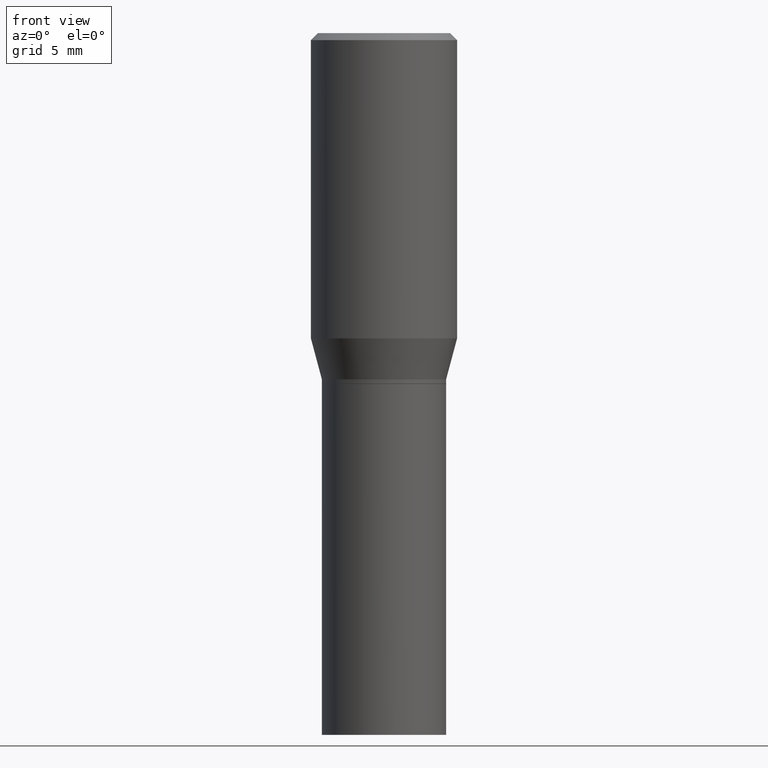
[diagram: clean part render]
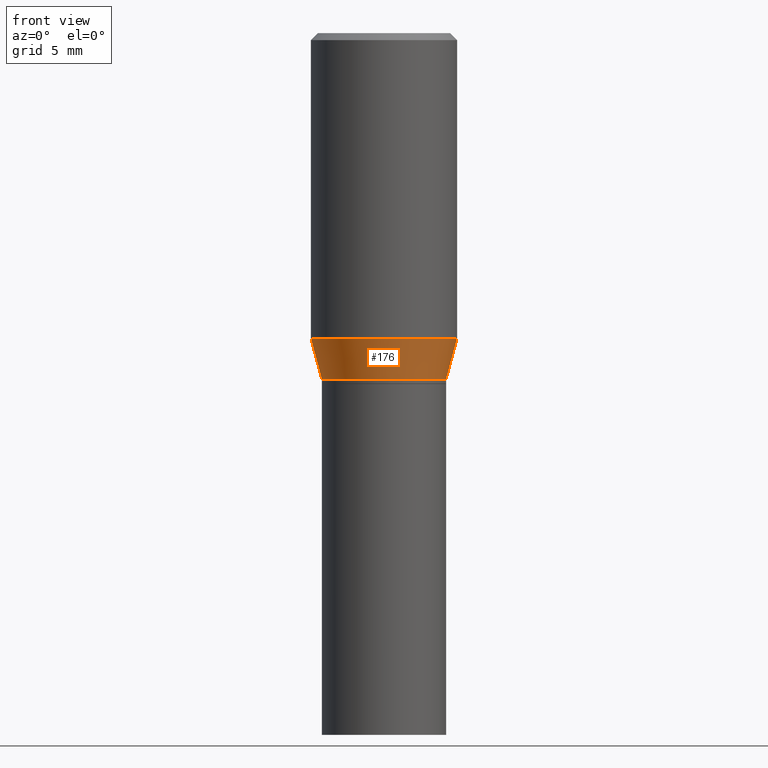
[diagram: same view with one face highlighted and labeled with its STEP entity id]
A machine part, front view. The second image highlights one B-rep face of the part: STEP entity #176.
In plain terms, the highlighted conical surface has half-angle 15 deg.
Its self-contained STEP definition (entity closure, byte-faithful):
#8 = CARTESIAN_POINT ( 'NONE',  ( 0.1328000000000000569, -3.511033634340664450E-15, -0.7400000000000002132 ) ) ;
#20 = ORIENTED_EDGE ( 'NONE', *, *, #390, .F. ) ;
#32 = CARTESIAN_POINT ( 'NONE',  ( 0.1562500000000000000, -3.369221563289251454E-15, -0.6524834085625104141 ) ) ;
#36 = CARTESIAN_POINT ( 'NONE',  ( -0.1328000000000000569, -1.404003028965065357E-15, -0.7400000000000002132 ) ) ;
#72 = DIRECTION ( 'NONE',  ( -2.445468806185136597E-29, 3.491481338843145583E-15, 1.000000000000000000 ) ) ;
#85 = CIRCLE ( 'NONE', #138, 0.1328000000000000569 ) ;
#86 = EDGE_CURVE ( 'NONE', #124, #198, #88, .T. ) ;
#88 = LINE ( 'NONE', #8, #377 ) ;
#113 = DIRECTION ( 'NONE',  ( -0.2588190451025214611, 5.211531920934550253E-15, 0.9659258262890679791 ) ) ;
#124 = VERTEX_POINT ( 'NONE', #465 ) ;
#129 = ORIENTED_EDGE ( 'NONE', *, *, #359, .F. ) ;
#135 = DIRECTION ( 'NONE',  ( 1.000000000000000000, -6.982962677686265133E-15, 0.000000000000000000 ) ) ;
#138 = AXIS2_PLACEMENT_3D ( 'NONE', #458, #72, #155 ) ;
#155 = DIRECTION ( 'NONE',  ( 1.000000000000000000, -6.982962677686265133E-15, 0.000000000000000000 ) ) ;
#159 = AXIS2_PLACEMENT_3D ( 'NONE', #400, #239, #135 ) ;
#161 = EDGE_CURVE ( 'NONE', #191, #124, #85, .T. ) ;
#167 = AXIS2_PLACEMENT_3D ( 'NONE', #423, #351, #286 ) ;
#176 = ADVANCED_FACE ( 'NONE', ( #225 ), #291, .T. ) ;
#183 = LINE ( 'NONE', #222, #352 ) ;
#191 = VERTEX_POINT ( 'NONE', #36 ) ;
#193 = DIRECTION ( 'NONE',  ( 0.2588190451025214611, 1.565188264969620982E-15, 0.9659258262890679791 ) ) ;
#198 = VERTEX_POINT ( 'NONE', #32 ) ;
#222 = CARTESIAN_POINT ( 'NONE',  ( -0.1328000000000000569, -1.640095437654514777E-15, -0.7400000000000002132 ) ) ;
#225 = FACE_OUTER_BOUND ( 'NONE', #405, .T. ) ;
#239 = DIRECTION ( 'NONE',  ( -2.445468806185136597E-29, 3.491481338843145583E-15, 1.000000000000000000 ) ) ;
#286 = DIRECTION ( 'NONE',  ( 1.000000000000000000, -6.982962677686265133E-15, 0.000000000000000000 ) ) ;
#291 = CONICAL_SURFACE ( 'NONE', #159, 0.1328000000000000569, 0.2617993877991501850 ) ;
#318 = ORIENTED_EDGE ( 'NONE', *, *, #86, .T. ) ;
#351 = DIRECTION ( 'NONE',  ( -2.445468806185136597E-29, 3.491481338843145583E-15, 1.000000000000000000 ) ) ;
#352 = VECTOR ( 'NONE', #113, 39.37007874015748143 ) ;
#359 = EDGE_CURVE ( 'NONE', #191, #415, #183, .T. ) ;
#377 = VECTOR ( 'NONE', #193, 39.37007874015748143 ) ;
#382 = ORIENTED_EDGE ( 'NONE', *, *, #161, .T. ) ;
#390 = EDGE_CURVE ( 'NONE', #415, #198, #416, .T. ) ;
#400 = CARTESIAN_POINT ( 'NONE',  ( 1.809646916577001463E-29, -2.583696190743928228E-15, -0.7400000000000002132 ) ) ;
#405 = EDGE_LOOP ( 'NONE', ( #129, #382, #318, #20 ) ) ;
#415 = VERTEX_POINT ( 'NONE', #455 ) ;
#416 = CIRCLE ( 'NONE', #167, 0.1562500000000000000 ) ;
#423 = CARTESIAN_POINT ( 'NONE',  ( 1.595627822192971094E-29, -2.278133644900773069E-15, -0.6524834085625104141 ) ) ;
#455 = CARTESIAN_POINT ( 'NONE',  ( -0.1562500000000000000, -1.167910620275616332E-15, -0.6524834085625104141 ) ) ;
#458 = CARTESIAN_POINT ( 'NONE',  ( 1.809646916577001463E-29, -2.583696190743928228E-15, -0.7400000000000002132 ) ) ;
#465 = CARTESIAN_POINT ( 'NONE',  ( 0.1328000000000000569, -3.511033634340664450E-15, -0.7400000000000002132 ) ) ;